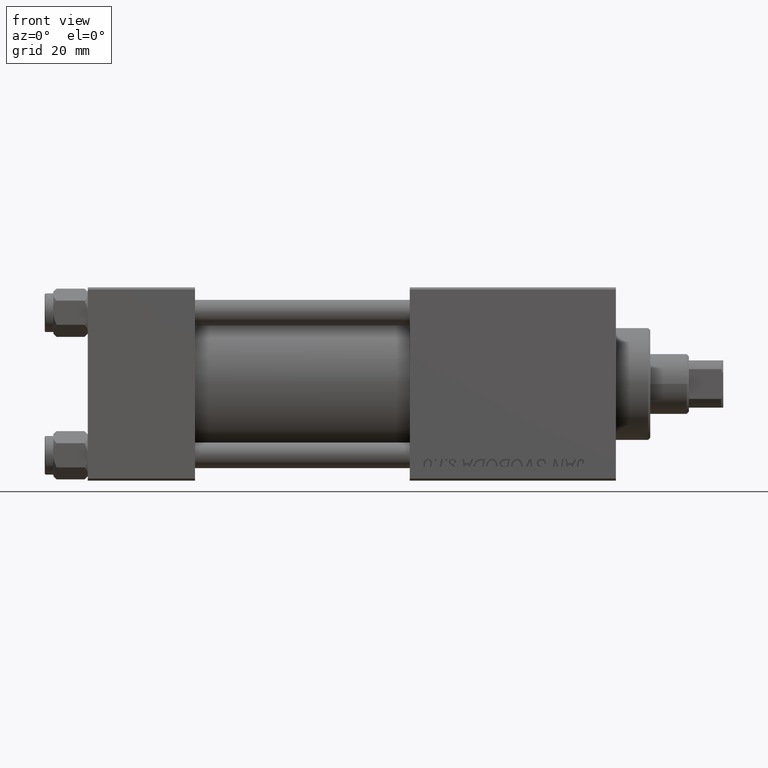
[diagram: clean part render]
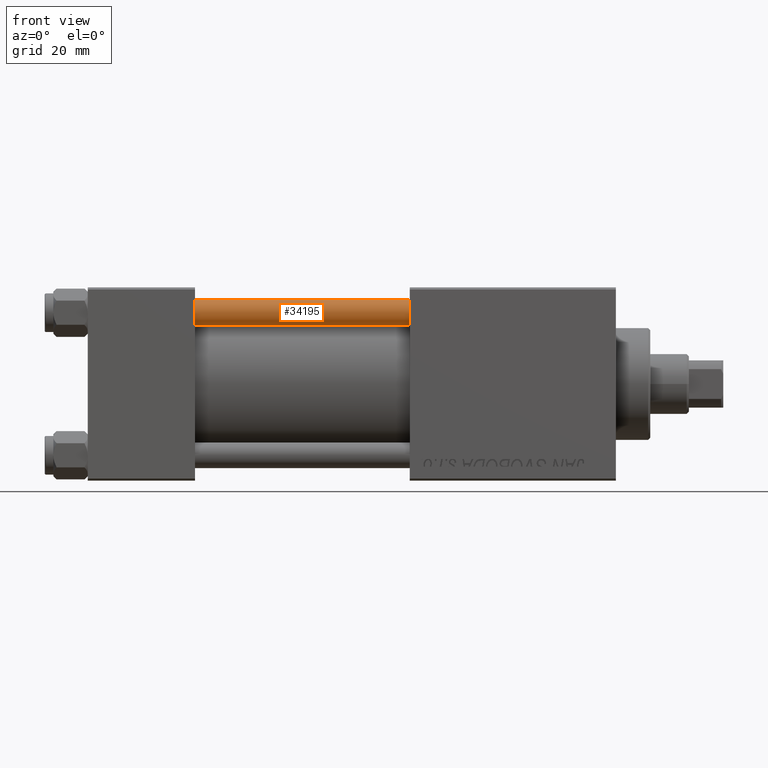
[diagram: same view with one face highlighted and labeled with its STEP entity id]
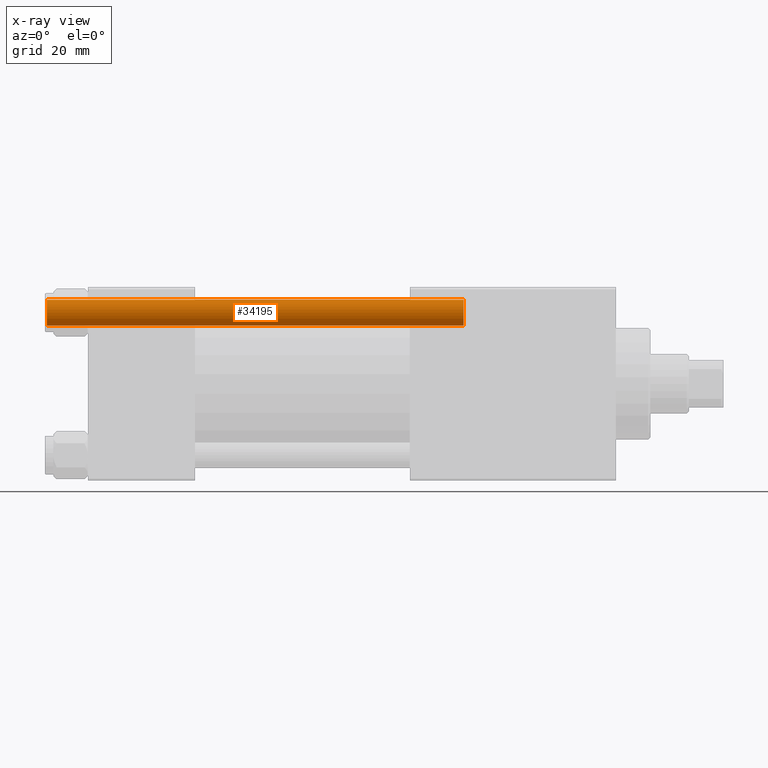
[diagram: x-ray of the same camera — body ghosted, the highlighted face saturated]
A machine part, front view. The second image highlights one B-rep face of the part: STEP entity #34195.
The next image is the same camera in x-ray: the body ghosted, the highlighted face saturated — about 0% of this face is hidden behind the body in this view.
In plain terms, the highlighted cylindrical surface (edge-blend (fillet) strip) has radius 3 mm, axis along (1, 0, -0).
Its self-contained STEP definition (entity closure, byte-faithful):
#1211 = DIRECTION ( 'NONE',  ( 0.000000000000000000, 0.000000000000000000, -1.000000000000000000 ) ) ;
#1458 = LINE ( 'NONE', #13898, #40092 ) ;
#1881 = LINE ( 'NONE', #13328, #23304 ) ;
#2049 = CARTESIAN_POINT ( 'NONE',  ( -3.000000000000000444, 0.000000000000000000, 0.5000000000000281997 ) ) ;
#3526 = AXIS2_PLACEMENT_3D ( 'NONE', #36106, #1211, #16717 ) ;
#5936 = DIRECTION ( 'NONE',  ( 1.000000000000000000, 0.000000000000000000, 0.000000000000000000 ) ) ;
#7093 = VERTEX_POINT ( 'NONE', #32752 ) ;
#8891 = CARTESIAN_POINT ( 'NONE',  ( 3.000000000000000444, 3.673940397442060361E-16, 0.5000000000000281997 ) ) ;
#9624 = VERTEX_POINT ( 'NONE', #2049 ) ;
#11153 = ORIENTED_EDGE ( 'NONE', *, *, #24455, .T. ) ;
#11412 = ORIENTED_EDGE ( 'NONE', *, *, #45766, .T. ) ;
#11441 = CARTESIAN_POINT ( 'NONE',  ( 0.000000000000000000, 0.000000000000000000, 98.00000000000000000 ) ) ;
#12701 = CIRCLE ( 'NONE', #37901, 3.000000000000000444 ) ;
#13328 = CARTESIAN_POINT ( 'NONE',  ( 3.000000000000000444, 3.673940397442060361E-16, 98.00000000000000000 ) ) ;
#13898 = CARTESIAN_POINT ( 'NONE',  ( -3.000000000000000444, 0.000000000000000000, 98.00000000000000000 ) ) ;
#15605 = CARTESIAN_POINT ( 'NONE',  ( -3.000000000000000444, 0.000000000000000000, 97.50000000000001421 ) ) ;
#16717 = DIRECTION ( 'NONE',  ( 1.000000000000000000, 0.000000000000000000, 0.000000000000000000 ) ) ;
#20956 = DIRECTION ( 'NONE',  ( -0.000000000000000000, -0.000000000000000000, 1.000000000000000000 ) ) ;
#21218 = DIRECTION ( 'NONE',  ( -0.000000000000000000, -0.000000000000000000, -1.000000000000000000 ) ) ;
#23304 = VECTOR ( 'NONE', #21218, 1000.000000000000000 ) ;
#24455 = EDGE_CURVE ( 'NONE', #25140, #7093, #42539, .T. ) ;
#24599 = EDGE_CURVE ( 'NONE', #25140, #9624, #1458, .T. ) ;
#25140 = VERTEX_POINT ( 'NONE', #15605 ) ;
#26314 = AXIS2_PLACEMENT_3D ( 'NONE', #11441, #26484, #33632 ) ;
#26484 = DIRECTION ( 'NONE',  ( -0.000000000000000000, -0.000000000000000000, -1.000000000000000000 ) ) ;
#29114 = CARTESIAN_POINT ( 'NONE',  ( 0.000000000000000000, 0.000000000000000000, 0.5000000000000281997 ) ) ;
#29838 = EDGE_LOOP ( 'NONE', ( #11153, #11412, #41296, #34369 ) ) ;
#32752 = CARTESIAN_POINT ( 'NONE',  ( 3.000000000000000444, 3.673940397442060361E-16, 97.50000000000001421 ) ) ;
#33632 = DIRECTION ( 'NONE',  ( -1.000000000000000000, 0.000000000000000000, 0.000000000000000000 ) ) ;
#34195 = ADVANCED_FACE ( 'NONE', ( #46063 ), #34385, .T. ) ;
#34369 = ORIENTED_EDGE ( 'NONE', *, *, #24599, .F. ) ;
#34385 = CYLINDRICAL_SURFACE ( 'NONE', #26314, 3.000000000000000444 ) ;
#36106 = CARTESIAN_POINT ( 'NONE',  ( 0.000000000000000000, 0.000000000000000000, 97.50000000000001421 ) ) ;
#36283 = VERTEX_POINT ( 'NONE', #8891 ) ;
#37901 = AXIS2_PLACEMENT_3D ( 'NONE', #29114, #20956, #5936 ) ;
#40092 = VECTOR ( 'NONE', #44215, 1000.000000000000000 ) ;
#41296 = ORIENTED_EDGE ( 'NONE', *, *, #44038, .T. ) ;
#42539 = CIRCLE ( 'NONE', #3526, 3.000000000000000444 ) ;
#44038 = EDGE_CURVE ( 'NONE', #36283, #9624, #12701, .T. ) ;
#44215 = DIRECTION ( 'NONE',  ( -0.000000000000000000, -0.000000000000000000, -1.000000000000000000 ) ) ;
#45766 = EDGE_CURVE ( 'NONE', #7093, #36283, #1881, .T. ) ;
#46063 = FACE_OUTER_BOUND ( 'NONE', #29838, .T. ) ;